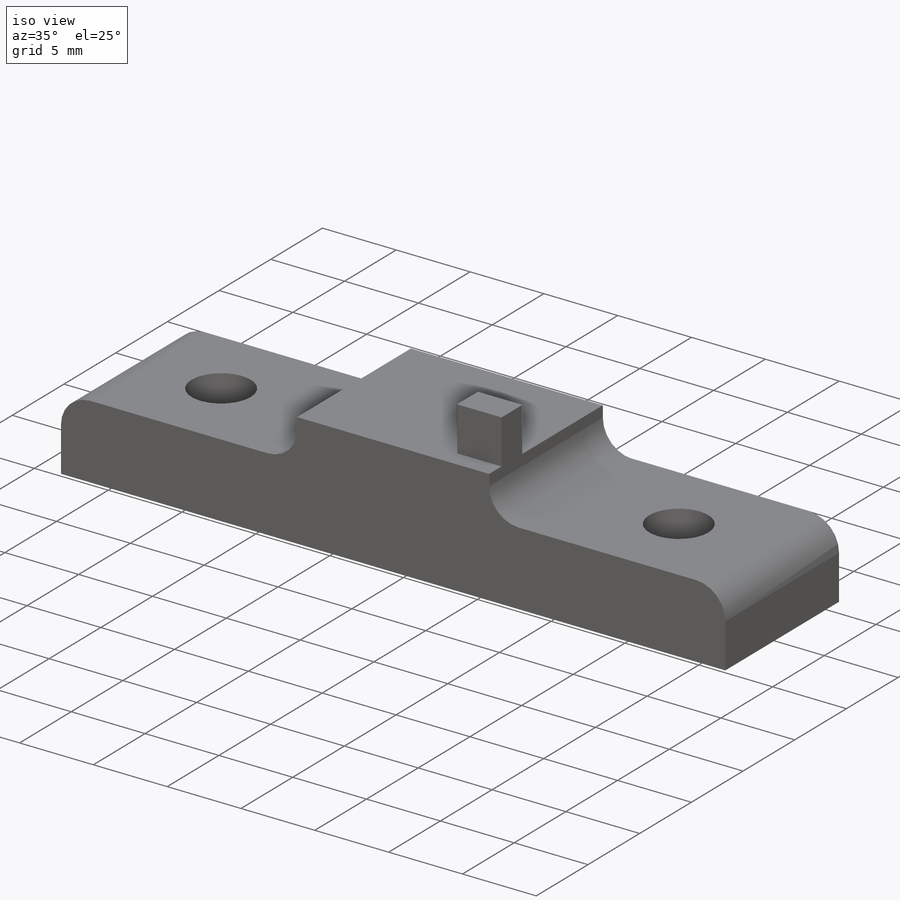
[diagram: iso view]
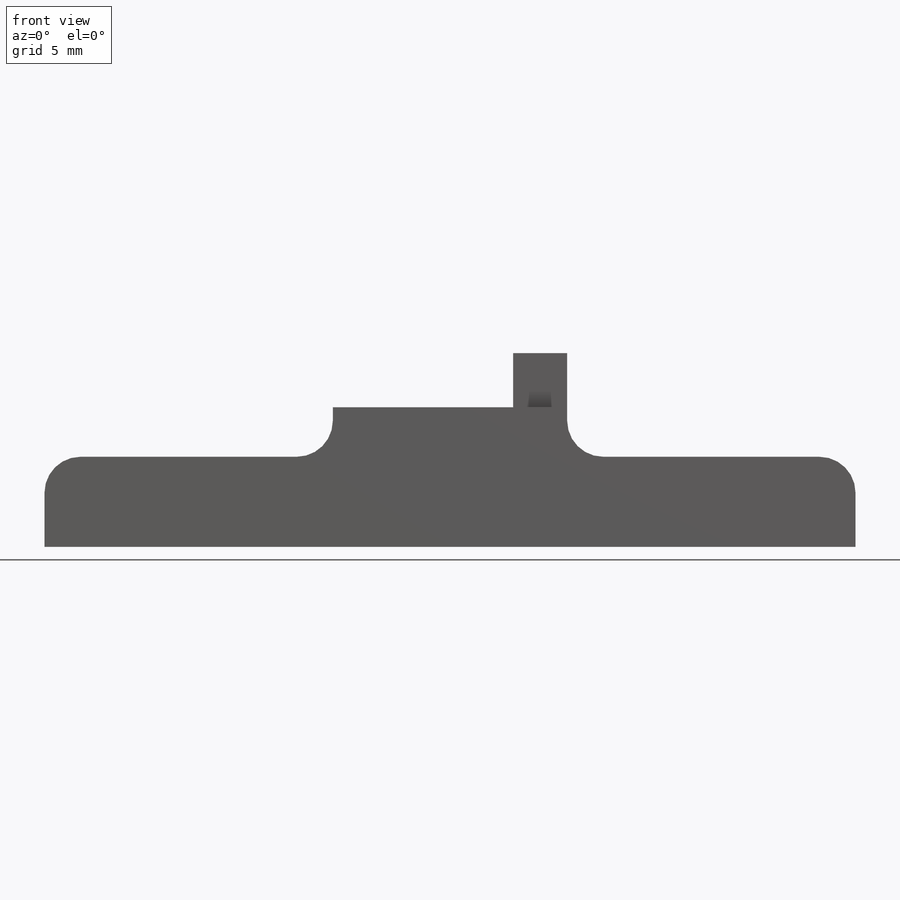
[diagram: front view]
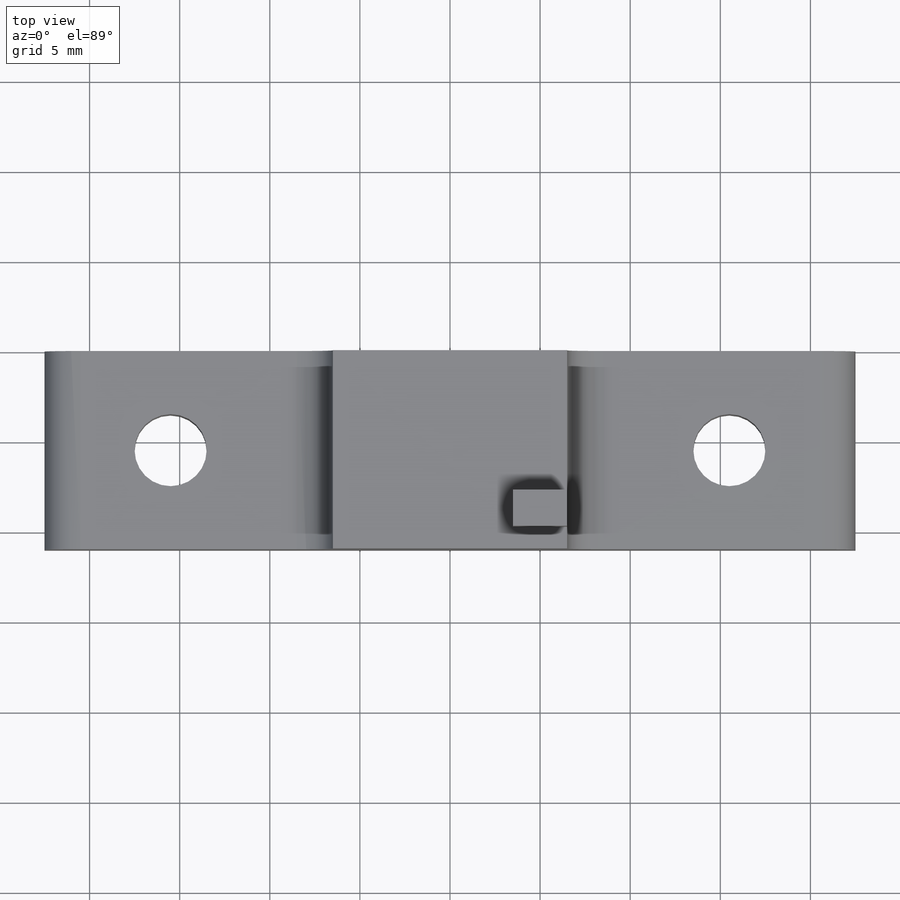
[diagram: top view]
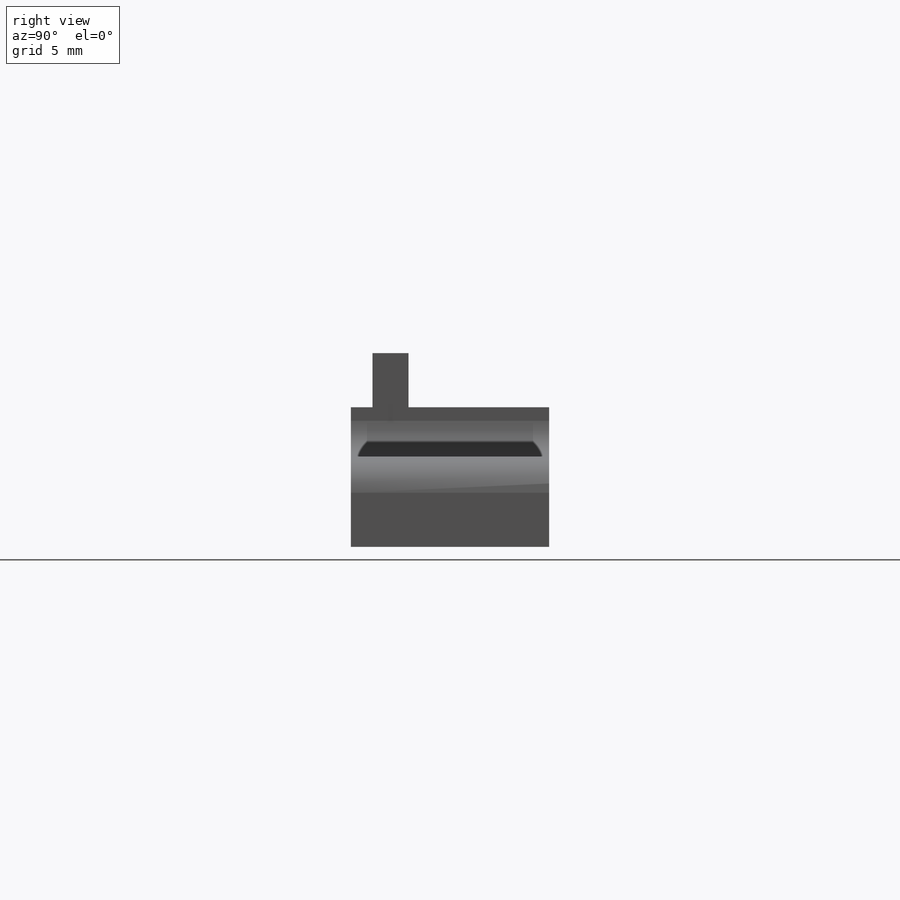
[diagram: right view]
SOLIDWORKS PART (.sldprt)
format: sldprt  version: not decoded by parser v0  size: 336,384 bytes
history: native  units: mm
features: sketch x11, extrude x6, cut_extrude x5, fillet x4, material x1 (+13 scaffold rows collapsed)
feature tree (40):
  scaffold x13  (default folders/planes/origin — collapsed)
  material  "Material <not specified>"
  sketch  "Sketch1"  dims[c1.D3=1.0mm c1.D4=1.0mm c1.D5=1.0mm c1.D6=1.0mm c1.D1=13.0mm c1.D2=16.85mm c2.D1=13.0mm c2.D3=13.0mm]
  extrude  "Boss-Extrude1"  Depth=2mm
  sketch  "Sketch2"  dims[c1.D1=2.0mm c1.D2=2.0mm c1.D3=2.2mm c1.D4=2.2mm c1.D7=2.2mm c2.D4=2.2mm c2.D7=2.2mm c2.D3=1.675mm c3.D4=1.775mm c3.D5=6.5mm c3.D6=6.5mm c3.D7=6.6mm c4.D4=8.75mm c4.D7=1.575mm]
  cut_extrude  "Cut-Extrude1"  [1 undecoded]
  sketch  "Sketch3"  dims[c1.D2=1.75mm c1.D1=3.6mm c2.D2=1.0mm c2.D3=3.875mm c2.D4=3.875mm]
  cut_extrude  "Cut-Extrude2"  [1 undecoded]
  sketch  "Sketch4"  dims[c1.D2=1.0mm c1.D3=2.2mm c1.D1=4.75mm c2.D3=1.675mm c2.D1=4.75mm]
  extrude  "Boss-Extrude3"  Depth=15mm
  sketch  "Sketch6"  dims[D1=2.0mm D2=11.0mm]
  extrude  "Boss-Extrude4"  Depth=16mm
  sketch  "Sketch7"  dims[D1=2.0mm D2=11.0mm]
  extrude  "Boss-Extrude5"  Depth=16mm
  sketch  "Sketch8"  dims[c1.D1=4.0mm c1.D2=3.0mm c1.D3=3.0mm c1.D4=4.0mm c1.D5=3.0mm c1.D6=3.0mm c2.D2=7.0mm c2.D3=5.5mm c2.D5=7.0mm c2.D6=5.5mm]
  cut_extrude  "Cut-Extrude3"  [1 undecoded]
  fillet  "Fillet5"  Radius=2mm
  fillet  "Fillet6"  Radius=2mm
  fillet  "Fillet7"  Radius=2mm
  fillet  "Fillet8"  Radius=2mm
  sketch  "Sketch10"
  cut_extrude  "Cut-Extrude4"  [1 undecoded]
  sketch  "Sketch11"  dims[D1=6.0mm]
  cut_extrude  "Cut-Extrude5"  [1 undecoded]
  sketch  "Sketch12"  dims[D1=1.2mm D2=2.0mm D3=3.0mm]
  extrude  "Boss-Extrude6"  Depth=3mm
  sketch  "Sketch13"
  extrude  "Boss-Extrude7"  Depth=3mm
decode coverage: 19 of 26 modeling features carry decoded parameters
note: 5 parameter values undecoded
summary: no parameter record found for 5 features
note: suppression state not decoded; provenance and decode notes live in map.json
